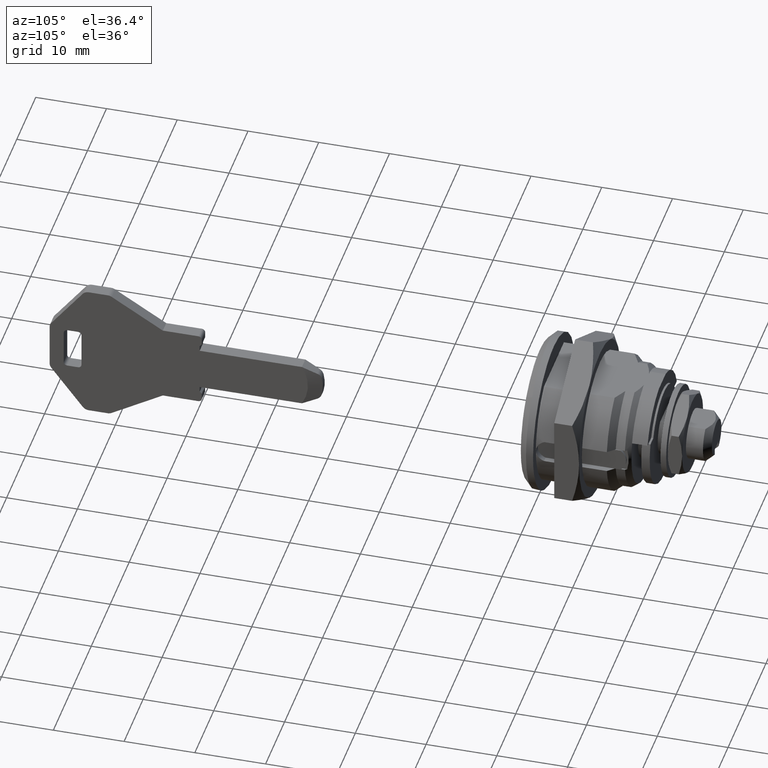
[diagram: clean part render]
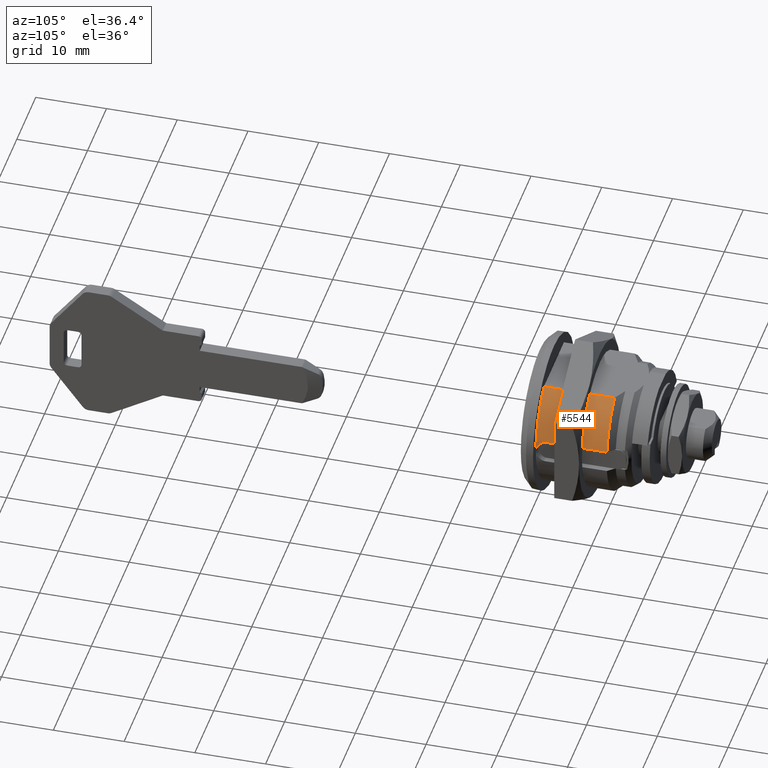
[diagram: same view with one face highlighted and labeled with its STEP entity id]
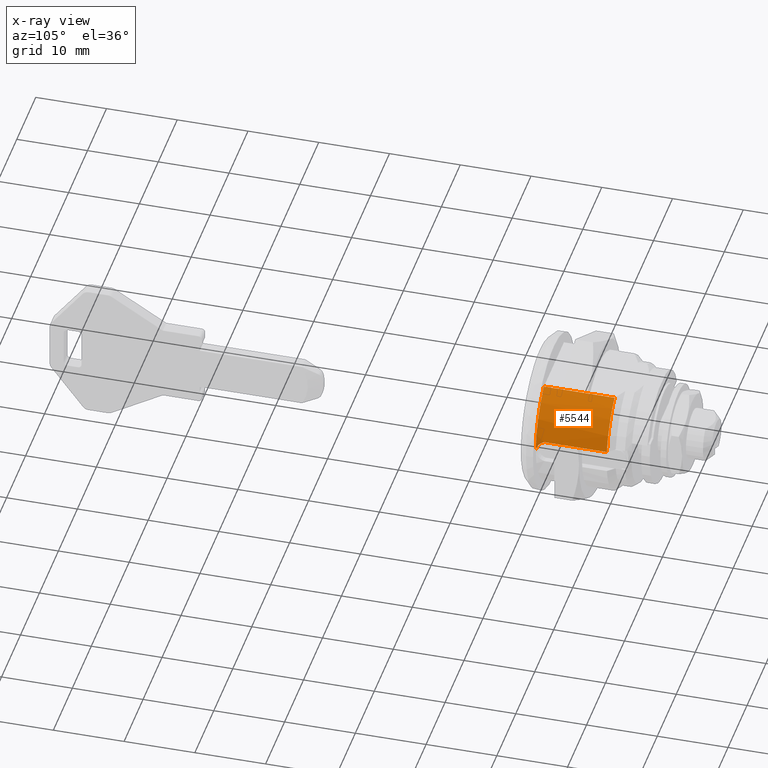
[diagram: x-ray of the same camera — body ghosted, the highlighted face saturated]
A machine part, auxiliary view. The second image highlights one B-rep face of the part: STEP entity #5544.
The next image is the same camera in x-ray: the body ghosted, the highlighted face saturated — about 0% of this face is hidden behind the body in this view.
In plain terms, the highlighted face is a freeform B-spline surface patch.
Its self-contained STEP definition (entity closure, byte-faithful):
#3370=CARTESIAN_POINT('',(3.148566557680360,-9.364293886887639,1.599999999999810));
#3371=VERTEX_POINT('',#3370);
#3378=CARTESIAN_POINT('',(11.988000000000000,-9.364293886887609,1.599999999999810));
#3379=VERTEX_POINT('',#3378);
#3385=CARTESIAN_POINT('',(3.148566557680360,-9.364293886887639,1.599999999999810));
#3386=CARTESIAN_POINT('',(11.988000000000000,-9.364293886887609,1.599999999999810));
#3387=QUASI_UNIFORM_CURVE('',1,(#3385,#3386),.UNSPECIFIED.,.F.,.U.);
#3388=EDGE_CURVE('',#3371,#3379,#3387,.T.);
#3441=CARTESIAN_POINT('',(2.000000000000100,-9.499987226618451,0.022031519363478));
#3442=VERTEX_POINT('',#3441);
#3443=CARTESIAN_POINT('',(3.148566557680360,-9.364293886887639,1.599999999999810));
#3444=CARTESIAN_POINT('',(3.065133202338452,-9.369141906065407,1.571628836861168));
#3445=CARTESIAN_POINT('',(2.985066740528765,-9.374899304043149,1.537186327744448));
#3446=CARTESIAN_POINT('',(2.831332478206093,-9.387743134285660,1.456700645533827));
#3447=CARTESIAN_POINT('',(2.757665511617336,-9.394831437580409,1.410656225454787));
#3448=CARTESIAN_POINT('',(2.652068719437994,-9.406105581184752,1.332640552510050));
#3449=CARTESIAN_POINT('',(2.617667092808345,-9.409975056172582,1.305093493110216));
#3450=CARTESIAN_POINT('',(2.551692870227376,-9.417725678999851,1.247939571258575));
#3451=CARTESIAN_POINT('',(2.519963333907322,-9.421622959351492,1.218224297187592));
#3452=CARTESIAN_POINT('',(2.428469995360748,-9.433276962493316,1.125721504867707));
#3453=CARTESIAN_POINT('',(2.372379097041982,-9.440996418584721,1.059597375945375));
#3454=CARTESIAN_POINT('',(2.295700725453401,-9.452092867008748,0.953587800844538));
#3455=CARTESIAN_POINT('',(2.271296540443857,-9.455725518930338,0.916950985432458));
#3456=CARTESIAN_POINT('',(2.225563291980110,-9.462683482909297,0.842126137575288));
#3457=CARTESIAN_POINT('',(2.204275365602550,-9.466001434163415,0.804037888447991));
#3458=CARTESIAN_POINT('',(2.145030679046703,-9.475397368035441,0.687789853694035));
#3459=CARTESIAN_POINT('',(2.111665798218083,-9.480917788209521,0.607658265993987));
#3460=CARTESIAN_POINT('',(2.070860498274947,-9.487790251236786,0.483472819387610));
#3461=CARTESIAN_POINT('',(2.058805839157455,-9.489846372669234,0.441410141172645));
#3462=CARTESIAN_POINT('',(2.037884869613433,-9.493438141592209,0.355906608704455));
#3463=CARTESIAN_POINT('',(2.029100288227845,-9.494959669944080,0.312752302832287));
#3464=CARTESIAN_POINT('',(2.008598101347265,-9.498517391618824,0.187473766268791));
#3465=CARTESIAN_POINT('',(2.001270947717034,-9.499794520992365,0.104942829956279));
#3466=CARTESIAN_POINT('',(2.000000000000100,-9.499987226618451,0.022031519363478));
#3467=B_SPLINE_CURVE_WITH_KNOTS('',3,(#3443,#3444,#3445,#3446,#3447,#3448,#3449,#3450,#3451,#3452,#3453,#3454,#3455,#3456,#3457,#3458,#3459,#3460,#3461,#3462,#3463,#3464,#3465,#3466),.UNSPECIFIED.,.F.,.U.,(4,2,2,2,2,2,2,2,2,2,2,4),(0.0,0.062500000000000,0.125000000000000,0.156250000000000,0.187500000000000,0.250000000000000,0.281250000000000,0.312500000000000,0.375000000000000,0.406250000000000,0.437500000000000,0.497018176205700),.UNSPECIFIED.);
#3468=EDGE_CURVE('',#3371,#3442,#3467,.T.);
#3935=CARTESIAN_POINT('',(11.988000000000000,-5.276362383309160,7.900000000000000));
#3936=VERTEX_POINT('',#3935);
#4027=CARTESIAN_POINT('',(2.000000000000100,-5.276362383309160,7.900000000000000));
#4028=VERTEX_POINT('',#4027);
#4034=CARTESIAN_POINT('',(11.988000000000000,-5.276362383309160,7.900000000000000));
#4035=CARTESIAN_POINT('',(2.000000000000100,-5.276362383309160,7.900000000000000));
#4036=QUASI_UNIFORM_CURVE('',1,(#4034,#4035),.UNSPECIFIED.,.F.,.U.);
#4037=EDGE_CURVE('',#3936,#4028,#4036,.T.);
#5340=CARTESIAN_POINT('',(11.988000000000000,-9.364293886887609,1.599999999999810));
#5341=CARTESIAN_POINT('',(11.988000000000010,-9.235796907340262,2.353176749491322));
#5342=CARTESIAN_POINT('',(11.988000000000000,-8.876590245450196,3.556358126459148));
#5343=CARTESIAN_POINT('',(11.987999999999991,-8.065467877733306,5.089144172120236));
#5344=CARTESIAN_POINT('',(11.988000000000010,-6.983048065367119,6.545852925993471));
#5345=CARTESIAN_POINT('',(11.988000000000010,-5.978796608076594,7.431203247090807));
#5346=CARTESIAN_POINT('',(11.988000000000000,-5.276362383309160,7.900000000000000));
#5347=B_SPLINE_CURVE_WITH_KNOTS('',3,(#5340,#5341,#5342,#5343,#5344,#5345,#5346),.UNSPECIFIED.,.F.,.U.,(4,1,1,1,4),(0.000000026885322,2.292131623551652,3.739806078754670,5.187447586344579,7.720862530099677),.UNSPECIFIED.);
#5348=EDGE_CURVE('',#3379,#3936,#5347,.T.);
#5513=CARTESIAN_POINT('',(12.237700000000000,-5.067756414068282,8.035411932668401));
#5514=CARTESIAN_POINT('',(1.744057500000102,-5.067756414068282,8.035411932668401));
#5515=CARTESIAN_POINT('',(12.237699999999995,-9.736639291400989,5.090850863939330));
#5516=CARTESIAN_POINT('',(1.744057500000103,-9.736639291400989,5.090850863939330));
#5517=CARTESIAN_POINT('',(12.237699999999998,-9.490554564050749,-0.423525756920948));
#5518=CARTESIAN_POINT('',(1.744057500000103,-9.490554564050749,-0.423525756920948));
#5526=(BOUNDED_SURFACE()B_SPLINE_SURFACE(1,2,((#5513,#5515,#5517),(#5514,#5516,#5518)),.UNSPECIFIED.,.F.,.F.,.U.)B_SPLINE_SURFACE_WITH_KNOTS((2,2),(3,3),(0.0,10.493642499999901),(0.0,10.238322291477770),.UNSPECIFIED.)GEOMETRIC_REPRESENTATION_ITEM()RATIONAL_B_SPLINE_SURFACE(((1.0,0.863252775984591,0.996790871268963),(1.0,0.863252775984591,0.996790871268963)))REPRESENTATION_ITEM('')SURFACE());
#5527=ORIENTED_EDGE('',*,*,#3468,.F.);
#5528=ORIENTED_EDGE('',*,*,#3388,.T.);
#5529=ORIENTED_EDGE('',*,*,#5348,.T.);
#5530=ORIENTED_EDGE('',*,*,#4037,.T.);
#5531=CARTESIAN_POINT('',(2.000000000000100,-5.276362383309160,7.900000000000000));
#5532=CARTESIAN_POINT('',(2.000000000000105,-5.820586052627580,7.536650835613864));
#5533=CARTESIAN_POINT('',(2.000000000000099,-6.589518096629792,6.898961972605562));
#5534=CARTESIAN_POINT('',(2.000000000000102,-7.583686791600377,5.769382326766809));
#5535=CARTESIAN_POINT('',(2.000000000000103,-8.473719358766378,4.434091783176499));
#5536=CARTESIAN_POINT('',(2.000000000000091,-9.278661025694303,2.469193084719516));
#5537=CARTESIAN_POINT('',(2.000000000000108,-9.498256517231898,0.870298168119517));
#5538=CARTESIAN_POINT('',(2.000000000000100,-9.499987226618451,0.022031519363478));
#5539=B_SPLINE_CURVE_WITH_KNOTS('',3,(#5531,#5532,#5533,#5534,#5535,#5536,#5537,#5538),.UNSPECIFIED.,.F.,.U.,(4,1,1,1,1,4),(0.000000038889979,1.963082146095792,2.980982793492676,4.507826013996179,6.761731586120229,9.306470046981215),.UNSPECIFIED.);
#5540=EDGE_CURVE('',#4028,#3442,#5539,.T.);
#5541=ORIENTED_EDGE('',*,*,#5540,.T.);
#5542=EDGE_LOOP('',(#5527,#5528,#5529,#5530,#5541));
#5543=FACE_OUTER_BOUND('',#5542,.T.);
#5544=ADVANCED_FACE('',(#5543),#5526,.T.);